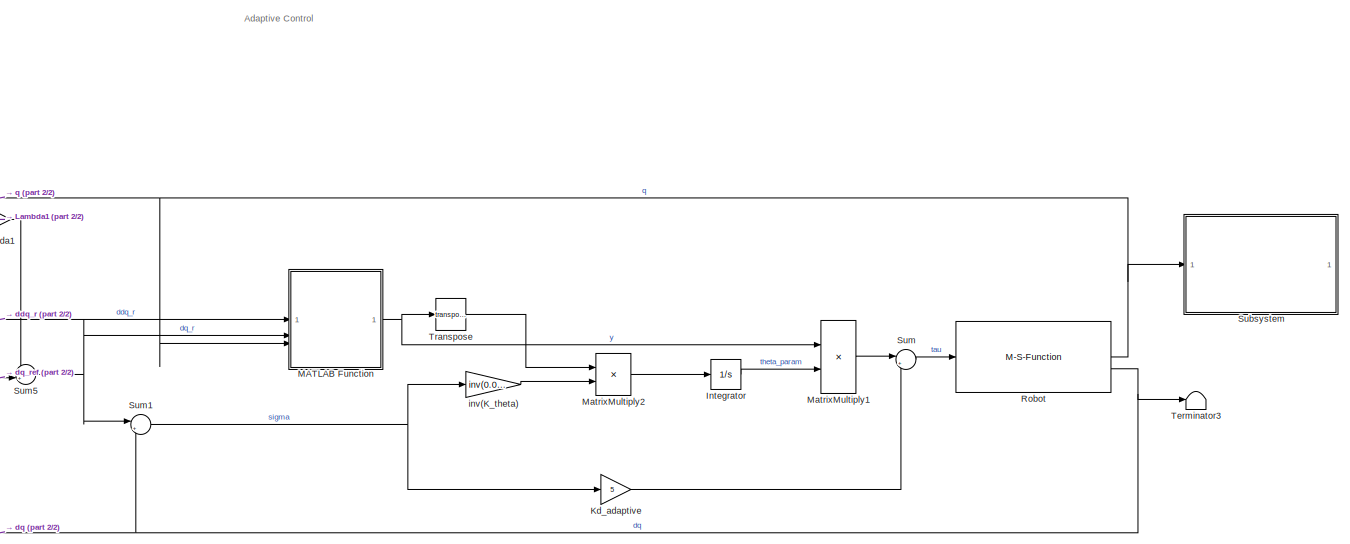
[diagram: root canvas - part 1/2, center side, full height]
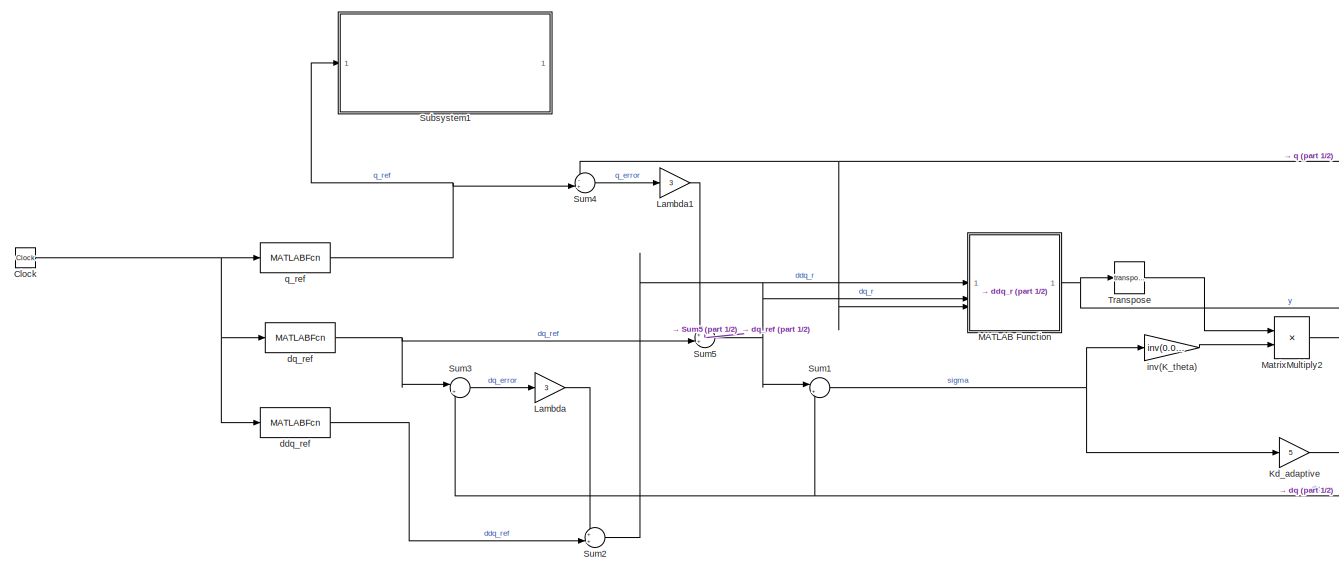
[diagram: root canvas - part 2/2, left side, full height]
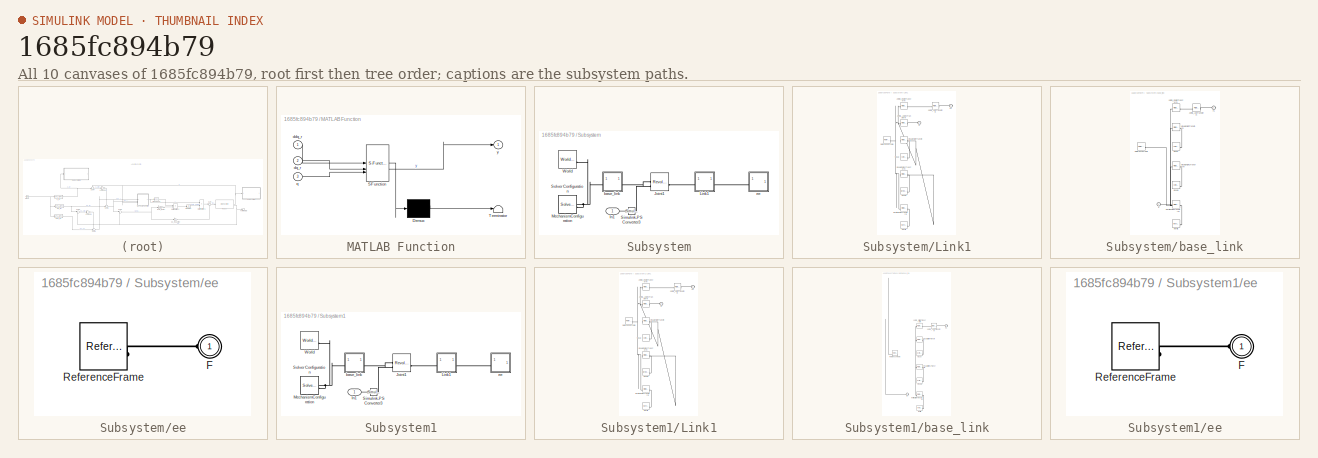
[diagram: thumbnail index - all 10 canvases of the model, root first then tree order]
MODEL slx_1685fc894b79
KIND model
CONFIG AbsTol = auto
CONFIG EnableMultiTasking = off
CONFIG FixedStep = auto
CONFIG MaxStep = auto
CONFIG MinStep = auto
CONFIG RelTol = 1e-3
CONFIG SampleTimeConstraint = Unconstrained
CONFIG SolverName = VariableStepAuto
CONFIG StartTime = 0.0
CONFIG StopTime = 20
BLOCK [Clock] Clock
BLOCK [Integrator] Integrator
  InitialCondition = [0; 0; 0]
BLOCK [Gain] Kd_adaptive
  Gain = 5
BLOCK [Gain] Lambda
  Gain = 3
BLOCK [Gain] Lambda1
  Gain = 3
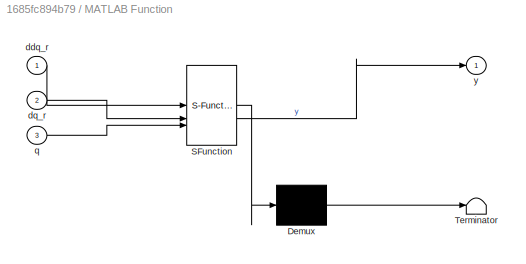
BLOCK [SubSystem] MATLAB Function
  ErrorFcn = Stateflow.Translate.translate
  PermitHierarchicalResolution = ExplicitOnly
  SFBlockType = MATLAB Function
  TreatAsAtomicUnit = on
BLOCK [Demux] MATLAB Function/ Demux 
  Outputs = 1
BLOCK [S-Function] MATLAB Function/ SFunction 
  EnableBusSupport = on
  FunctionName = sf_sfun
  PortCounts = [3 2]
  SFcnIsStateOwnerBlock = off
  SFunctionDeploymentMode = off
  Tag = Stateflow S-Function 2
BLOCK [Terminator] MATLAB Function/ Terminator 
BLOCK [Inport] MATLAB Function/ddq_r
BLOCK [Inport] MATLAB Function/dq_r
  Port = 2
BLOCK [Inport] MATLAB Function/q
  Port = 3
BLOCK [Outport] MATLAB Function/y
BLOCK [Product] MatrixMultiply1
  Multiplication = Matrix(*)
BLOCK [Product] MatrixMultiply2
  Multiplication = Matrix(*)
BLOCK [M-S-Function] Robot
  FunctionName = adaptive_control_S_FUNCTION
  NameLocation = top
  Parameters = 1,1
BLOCK [SubSystem] Subsystem
  Commented = on
BLOCK [Inport] Subsystem/In1
BLOCK [Reference] Subsystem/Joint1  REF=sm_lib/Joints/Revolute Joint
  SourceBlock = sm_lib/Joints/Revolute Joint
  SourceType = Revolute Joint
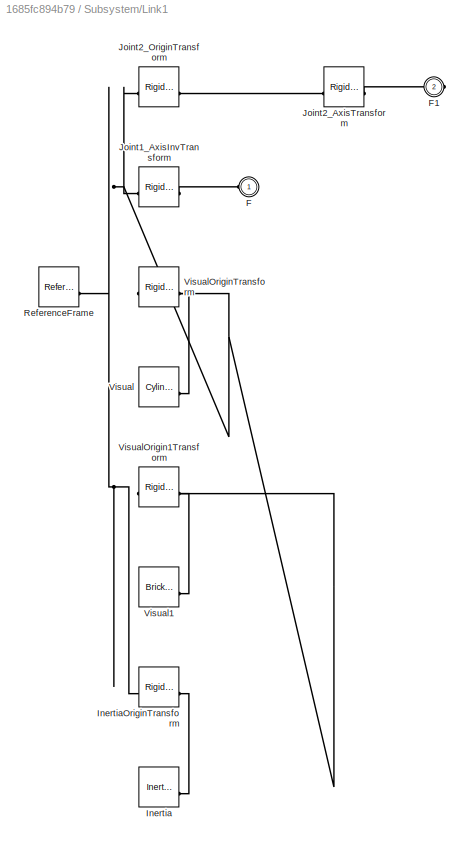
BLOCK [SubSystem] Subsystem/Link1
BLOCK [PMIOPort] Subsystem/Link1/F
  Side = Left
BLOCK [PMIOPort] Subsystem/Link1/F1
  Port = 2
  Side = Right
BLOCK [Reference] Subsystem/Link1/Inertia  REF=sm_lib/Body Elements/Inertia
  SourceBlock = sm_lib/Body Elements/Inertia
  SourceType = Inertia
BLOCK [Reference] Subsystem/Link1/InertiaOriginTransform  REF=sm_lib/Frames and
Transforms/Rigid
Transform
  SourceBlock = sm_lib/Frames and\nTransforms/Rigid\nTransform
  SourceType = Rigid\nTransform
BLOCK [Reference] Subsystem/Link1/Joint1_AxisInvTransform  REF=sm_lib/Frames and
Transforms/Rigid
Transform
  SourceBlock = sm_lib/Frames and\nTransforms/Rigid\nTransform
  SourceType = Rigid\nTransform
BLOCK [Reference] Subsystem/Link1/Joint2_AxisTransform  REF=sm_lib/Frames and
Transforms/Rigid
Transform
  SourceBlock = sm_lib/Frames and\nTransforms/Rigid\nTransform
  SourceType = Rigid\nTransform
BLOCK [Reference] Subsystem/Link1/Joint2_OriginTransform  REF=sm_lib/Frames and
Transforms/Rigid
Transform
  SourceBlock = sm_lib/Frames and\nTransforms/Rigid\nTransform
  SourceType = Rigid\nTransform
BLOCK [Reference] Subsystem/Link1/ReferenceFrame  REF=sm_lib/Frames and
Transforms/Reference
Frame
  SourceBlock = sm_lib/Frames and\nTransforms/Reference\nFrame
  SourceType = Reference\nFrame
BLOCK [Reference] Subsystem/Link1/Visual  REF=sm_lib/Body Elements/Cylindrical Solid
  SourceBlock = sm_lib/Body Elements/Cylindrical Solid
  SourceType = Cylindrical Solid
BLOCK [Reference] Subsystem/Link1/Visual1  REF=sm_lib/Body Elements/Brick Solid
  SourceBlock = sm_lib/Body Elements/Brick Solid
  SourceType = Brick Solid
BLOCK [Reference] Subsystem/Link1/VisualOrigin1Transform  REF=sm_lib/Frames and
Transforms/Rigid
Transform
  SourceBlock = sm_lib/Frames and\nTransforms/Rigid\nTransform
  SourceType = Rigid\nTransform
BLOCK [Reference] Subsystem/Link1/VisualOriginTransform  REF=sm_lib/Frames and
Transforms/Rigid
Transform
  SourceBlock = sm_lib/Frames and\nTransforms/Rigid\nTransform
  SourceType = Rigid\nTransform
BLOCK [Reference] Subsystem/MechanismConfiguration  REF=sm_lib/Utilities/Mechanism
Configuration
  SourceBlock = sm_lib/Utilities/Mechanism\nConfiguration
  SourceType = Mechanism\nConfiguration
BLOCK [Reference] Subsystem/Simulink-PS Converter3  REF=nesl_utility/Simulink-PS
Converter
  SourceBlock = nesl_utility/Simulink-PS\nConverter
  SourceType = Simulink-PS\nConverter
BLOCK [Reference] Subsystem/Solver Configuration  REF=nesl_utility/Solver
Configuration
  SourceBlock = nesl_utility/Solver\nConfiguration
  SourceType = Solver\nConfiguration
BLOCK [Reference] Subsystem/World  REF=sm_lib/Frames and
Transforms/World Frame
  SourceBlock = sm_lib/Frames and\nTransforms/World Frame
  SourceType = World Frame
BLOCK [SubSystem] Subsystem/base_link
BLOCK [PMIOPort] Subsystem/base_link/F
  Side = Left
BLOCK [PMIOPort] Subsystem/base_link/F1
  Port = 2
  Side = Right
BLOCK [Reference] Subsystem/base_link/Inertia  REF=sm_lib/Body Elements/Inertia
  SourceBlock = sm_lib/Body Elements/Inertia
  SourceType = Inertia
BLOCK [Reference] Subsystem/base_link/InertiaOriginTransform  REF=sm_lib/Frames and
Transforms/Rigid
Transform
  SourceBlock = sm_lib/Frames and\nTransforms/Rigid\nTransform
  SourceType = Rigid\nTransform
BLOCK [Reference] Subsystem/base_link/Joint1_AxisTransform  REF=sm_lib/Frames and
Transforms/Rigid
Transform
  SourceBlock = sm_lib/Frames and\nTransforms/Rigid\nTransform
  SourceType = Rigid\nTransform
BLOCK [Reference] Subsystem/base_link/Joint1_OriginTransform  REF=sm_lib/Frames and
Transforms/Rigid
Transform
  SourceBlock = sm_lib/Frames and\nTransforms/Rigid\nTransform
  SourceType = Rigid\nTransform
BLOCK [Reference] Subsystem/base_link/ReferenceFrame  REF=sm_lib/Frames and
Transforms/Reference
Frame
  SourceBlock = sm_lib/Frames and\nTransforms/Reference\nFrame
  SourceType = Reference\nFrame
BLOCK [Reference] Subsystem/base_link/Visual  REF=sm_lib/Body Elements/Cylindrical Solid
  SourceBlock = sm_lib/Body Elements/Cylindrical Solid
  SourceType = Cylindrical Solid
BLOCK [Reference] Subsystem/base_link/Visual1  REF=sm_lib/Body Elements/Cylindrical Solid
  SourceBlock = sm_lib/Body Elements/Cylindrical Solid
  SourceType = Cylindrical Solid
BLOCK [Reference] Subsystem/base_link/VisualOrigin1Transform  REF=sm_lib/Frames and
Transforms/Rigid
Transform
  SourceBlock = sm_lib/Frames and\nTransforms/Rigid\nTransform
  SourceType = Rigid\nTransform
BLOCK [Reference] Subsystem/base_link/VisualOriginTransform  REF=sm_lib/Frames and
Transforms/Rigid
Transform
  SourceBlock = sm_lib/Frames and\nTransforms/Rigid\nTransform
  SourceType = Rigid\nTransform
BLOCK [SubSystem] Subsystem/ee
BLOCK [PMIOPort] Subsystem/ee/F
  Side = Left
BLOCK [Reference] Subsystem/ee/ReferenceFrame  REF=sm_lib/Frames and
Transforms/Reference
Frame
  SourceBlock = sm_lib/Frames and\nTransforms/Reference\nFrame
  SourceType = Reference\nFrame
BLOCK [SubSystem] Subsystem1
  Commented = on
BLOCK [Inport] Subsystem1/In1
BLOCK [Reference] Subsystem1/Joint1  REF=sm_lib/Joints/Revolute Joint
  SourceBlock = sm_lib/Joints/Revolute Joint
  SourceType = Revolute Joint
BLOCK [SubSystem] Subsystem1/Link1
BLOCK [PMIOPort] Subsystem1/Link1/F
  Side = Left
BLOCK [PMIOPort] Subsystem1/Link1/F1
  Port = 2
  Side = Right
BLOCK [Reference] Subsystem1/Link1/Inertia  REF=sm_lib/Body Elements/Inertia
  SourceBlock = sm_lib/Body Elements/Inertia
  SourceType = Inertia
BLOCK [Reference] Subsystem1/Link1/InertiaOriginTransform  REF=sm_lib/Frames and
Transforms/Rigid
Transform
  SourceBlock = sm_lib/Frames and\nTransforms/Rigid\nTransform
  SourceType = Rigid\nTransform
BLOCK [Reference] Subsystem1/Link1/Joint1_AxisInvTransform  REF=sm_lib/Frames and
Transforms/Rigid
Transform
  SourceBlock = sm_lib/Frames and\nTransforms/Rigid\nTransform
  SourceType = Rigid\nTransform
BLOCK [Reference] Subsystem1/Link1/Joint2_AxisTransform  REF=sm_lib/Frames and
Transforms/Rigid
Transform
  SourceBlock = sm_lib/Frames and\nTransforms/Rigid\nTransform
  SourceType = Rigid\nTransform
BLOCK [Reference] Subsystem1/Link1/Joint2_OriginTransform  REF=sm_lib/Frames and
Transforms/Rigid
Transform
  SourceBlock = sm_lib/Frames and\nTransforms/Rigid\nTransform
  SourceType = Rigid\nTransform
BLOCK [Reference] Subsystem1/Link1/ReferenceFrame  REF=sm_lib/Frames and
Transforms/Reference
Frame
  SourceBlock = sm_lib/Frames and\nTransforms/Reference\nFrame
  SourceType = Reference\nFrame
BLOCK [Reference] Subsystem1/Link1/Visual  REF=sm_lib/Body Elements/Cylindrical Solid
  SourceBlock = sm_lib/Body Elements/Cylindrical Solid
  SourceType = Cylindrical Solid
BLOCK [Reference] Subsystem1/Link1/Visual1  REF=sm_lib/Body Elements/Brick Solid
  SourceBlock = sm_lib/Body Elements/Brick Solid
  SourceType = Brick Solid
BLOCK [Reference] Subsystem1/Link1/VisualOrigin1Transform  REF=sm_lib/Frames and
Transforms/Rigid
Transform
  SourceBlock = sm_lib/Frames and\nTransforms/Rigid\nTransform
  SourceType = Rigid\nTransform
BLOCK [Reference] Subsystem1/Link1/VisualOriginTransform  REF=sm_lib/Frames and
Transforms/Rigid
Transform
  SourceBlock = sm_lib/Frames and\nTransforms/Rigid\nTransform
  SourceType = Rigid\nTransform
BLOCK [Reference] Subsystem1/MechanismConfiguration  REF=sm_lib/Utilities/Mechanism
Configuration
  SourceBlock = sm_lib/Utilities/Mechanism\nConfiguration
  SourceType = Mechanism\nConfiguration
BLOCK [Reference] Subsystem1/Simulink-PS Converter3  REF=nesl_utility/Simulink-PS
Converter
  SourceBlock = nesl_utility/Simulink-PS\nConverter
  SourceType = Simulink-PS\nConverter
BLOCK [Reference] Subsystem1/Solver Configuration  REF=nesl_utility/Solver
Configuration
  SourceBlock = nesl_utility/Solver\nConfiguration
  SourceType = Solver\nConfiguration
BLOCK [Reference] Subsystem1/World  REF=sm_lib/Frames and
Transforms/World Frame
  SourceBlock = sm_lib/Frames and\nTransforms/World Frame
  SourceType = World Frame
BLOCK [SubSystem] Subsystem1/base_link
BLOCK [PMIOPort] Subsystem1/base_link/F
  Side = Left
BLOCK [PMIOPort] Subsystem1/base_link/F1
  Port = 2
  Side = Right
BLOCK [Reference] Subsystem1/base_link/Inertia  REF=sm_lib/Body Elements/Inertia
  SourceBlock = sm_lib/Body Elements/Inertia
  SourceType = Inertia
BLOCK [Reference] Subsystem1/base_link/InertiaOriginTransform  REF=sm_lib/Frames and
Transforms/Rigid
Transform
  SourceBlock = sm_lib/Frames and\nTransforms/Rigid\nTransform
  SourceType = Rigid\nTransform
BLOCK [Reference] Subsystem1/base_link/Joint1_AxisTransform  REF=sm_lib/Frames and
Transforms/Rigid
Transform
  SourceBlock = sm_lib/Frames and\nTransforms/Rigid\nTransform
  SourceType = Rigid\nTransform
BLOCK [Reference] Subsystem1/base_link/Joint1_OriginTransform  REF=sm_lib/Frames and
Transforms/Rigid
Transform
  SourceBlock = sm_lib/Frames and\nTransforms/Rigid\nTransform
  SourceType = Rigid\nTransform
BLOCK [Reference] Subsystem1/base_link/ReferenceFrame  REF=sm_lib/Frames and
Transforms/Reference
Frame
  SourceBlock = sm_lib/Frames and\nTransforms/Reference\nFrame
  SourceType = Reference\nFrame
BLOCK [Reference] Subsystem1/base_link/Visual  REF=sm_lib/Body Elements/Cylindrical Solid
  SourceBlock = sm_lib/Body Elements/Cylindrical Solid
  SourceType = Cylindrical Solid
BLOCK [Reference] Subsystem1/base_link/Visual1  REF=sm_lib/Body Elements/Cylindrical Solid
  SourceBlock = sm_lib/Body Elements/Cylindrical Solid
  SourceType = Cylindrical Solid
BLOCK [Reference] Subsystem1/base_link/VisualOrigin1Transform  REF=sm_lib/Frames and
Transforms/Rigid
Transform
  SourceBlock = sm_lib/Frames and\nTransforms/Rigid\nTransform
  SourceType = Rigid\nTransform
BLOCK [Reference] Subsystem1/base_link/VisualOriginTransform  REF=sm_lib/Frames and
Transforms/Rigid
Transform
  SourceBlock = sm_lib/Frames and\nTransforms/Rigid\nTransform
  SourceType = Rigid\nTransform
BLOCK [SubSystem] Subsystem1/ee
BLOCK [PMIOPort] Subsystem1/ee/F
  Side = Left
BLOCK [Reference] Subsystem1/ee/ReferenceFrame  REF=sm_lib/Frames and
Transforms/Reference
Frame
  SourceBlock = sm_lib/Frames and\nTransforms/Reference\nFrame
  SourceType = Reference\nFrame
BLOCK [Sum] Sum
  Inputs = |++
BLOCK [Sum] Sum1
  Inputs = |+-
BLOCK [Sum] Sum2
  Inputs = ++|
BLOCK [Sum] Sum3
  Inputs = |+-
BLOCK [Sum] Sum4
  Inputs = -+|
BLOCK [Sum] Sum5
  Inputs = ++|
BLOCK [Terminator] Terminator3
BLOCK [Math] Transpose
  Operator = transpose
BLOCK [MATLABFcn] ddq_ref
  MATLABFcn = robotStructure.func.ddq_ref(u)
BLOCK [MATLABFcn] dq_ref
  MATLABFcn = robotStructure.func.dq_ref(u)
BLOCK [Gain] inv(K_theta)
  Gain = inv(0.001)
  Multiplication = Matrix(K*u)
BLOCK [MATLABFcn] q_ref
  MATLABFcn = robotStructure.func.q_ref(u)
ANNOTATION (root): Adaptive Control
NET Clock:1 -> ddq_ref:1, dq_ref:1, q_ref:1
LINE Integrator:1 -> MatrixMultiply1:2
LINE Kd_adaptive:1 -> Sum:2
LINE Lambda1:1 -> Sum5:1
LINE Lambda:1 -> Sum2:1
NET MATLAB Function:1 -> MatrixMultiply1:1, Transpose:1
LINE MatrixMultiply1:1 -> Sum:1
LINE MatrixMultiply2:1 -> Integrator:1
NET Robot:1 -> MATLAB Function:3, Subsystem:1, Sum4:1
NET Robot:2 -> Sum1:2, Sum3:2, Terminator3:1
LINE Subsystem/In1:1 -> Subsystem/Simulink-PS Converter3:1
LINE Subsystem1/In1:1 -> Subsystem1/Simulink-PS Converter3:1
NET Sum1:1 -> Kd_adaptive:1, inv(K_theta):1
LINE Sum2:1 -> MATLAB Function:1
LINE Sum3:1 -> Lambda:1
LINE Sum4:1 -> Lambda1:1
NET Sum5:1 -> MATLAB Function:2, Sum1:1
LINE Sum:1 -> Robot:1
LINE Transpose:1 -> MatrixMultiply2:1
LINE ddq_ref:1 -> Sum2:2
NET dq_ref:1 -> Sum3:1, Sum5:2
LINE inv(K_theta):1 -> MatrixMultiply2:2
NET q_ref:1 -> Subsystem1:1, Sum4:2
PLINE Subsystem/Joint1:LConn1 -- Subsystem/base_link:RConn1
PLINE Subsystem/Joint1:LConn2 -- Subsystem/Simulink-PS Converter3:RConn1
PLINE Subsystem/Joint1:RConn1 -- Subsystem/Link1:LConn1
PLINE Subsystem/Link1/F1:RConn1 -- Subsystem/Link1/Joint2_AxisTransform:RConn1
PLINE Subsystem/Link1/F:RConn1 -- Subsystem/Link1/Joint1_AxisInvTransform:RConn1
PLINE Subsystem/Link1/Inertia:RConn1 -- Subsystem/Link1/InertiaOriginTransform:RConn1
PNET net1: Subsystem/Link1/InertiaOriginTransform:LConn1 -- Subsystem/Link1/Joint1_AxisInvTransform:LConn1 -- Subsystem/Link1/Joint2_OriginTransform:LConn1 -- Subsystem/Link1/ReferenceFrame:RConn1 -- Subsystem/Link1/VisualOrigin1Transform:LConn1 -- Subsystem/Link1/VisualOriginTransform:LConn1
PLINE Subsystem/Link1/Joint2_AxisTransform:LConn1 -- Subsystem/Link1/Joint2_OriginTransform:RConn1
PLINE Subsystem/Link1/Visual1:RConn1 -- Subsystem/Link1/VisualOrigin1Transform:RConn1
PLINE Subsystem/Link1/Visual:RConn1 -- Subsystem/Link1/VisualOriginTransform:RConn1
PLINE Subsystem/Link1:RConn1 -- Subsystem/ee:LConn1
PNET net2: Subsystem/MechanismConfiguration:RConn1 -- Subsystem/Solver Configuration:RConn1 -- Subsystem/World:RConn1 -- Subsystem/base_link:LConn1
PLINE Subsystem/base_link/F1:RConn1 -- Subsystem/base_link/Joint1_AxisTransform:RConn1
PNET net3: Subsystem/base_link/F:RConn1 -- Subsystem/base_link/InertiaOriginTransform:LConn1 -- Subsystem/base_link/Joint1_OriginTransform:LConn1 -- Subsystem/base_link/ReferenceFrame:RConn1 -- Subsystem/base_link/VisualOrigin1Transform:LConn1 -- Subsystem/base_link/VisualOriginTransform:LConn1
PLINE Subsystem/base_link/Inertia:RConn1 -- Subsystem/base_link/InertiaOriginTransform:RConn1
PLINE Subsystem/base_link/Joint1_AxisTransform:LConn1 -- Subsystem/base_link/Joint1_OriginTransform:RConn1
PLINE Subsystem/base_link/Visual1:RConn1 -- Subsystem/base_link/VisualOrigin1Transform:RConn1
PLINE Subsystem/base_link/Visual:RConn1 -- Subsystem/base_link/VisualOriginTransform:RConn1
PLINE Subsystem/ee/F:RConn1 -- Subsystem/ee/ReferenceFrame:RConn1
PLINE Subsystem1/Joint1:LConn1 -- Subsystem1/base_link:RConn1
PLINE Subsystem1/Joint1:LConn2 -- Subsystem1/Simulink-PS Converter3:RConn1
PLINE Subsystem1/Joint1:RConn1 -- Subsystem1/Link1:LConn1
PLINE Subsystem1/Link1/F1:RConn1 -- Subsystem1/Link1/Joint2_AxisTransform:RConn1
PLINE Subsystem1/Link1/F:RConn1 -- Subsystem1/Link1/Joint1_AxisInvTransform:RConn1
PLINE Subsystem1/Link1/Inertia:RConn1 -- Subsystem1/Link1/InertiaOriginTransform:RConn1
PNET net4: Subsystem1/Link1/InertiaOriginTransform:LConn1 -- Subsystem1/Link1/Joint1_AxisInvTransform:LConn1 -- Subsystem1/Link1/Joint2_OriginTransform:LConn1 -- Subsystem1/Link1/ReferenceFrame:RConn1 -- Subsystem1/Link1/VisualOrigin1Transform:LConn1 -- Subsystem1/Link1/VisualOriginTransform:LConn1
PLINE Subsystem1/Link1/Joint2_AxisTransform:LConn1 -- Subsystem1/Link1/Joint2_OriginTransform:RConn1
PLINE Subsystem1/Link1/Visual1:RConn1 -- Subsystem1/Link1/VisualOrigin1Transform:RConn1
PLINE Subsystem1/Link1/Visual:RConn1 -- Subsystem1/Link1/VisualOriginTransform:RConn1
PLINE Subsystem1/Link1:RConn1 -- Subsystem1/ee:LConn1
PNET net5: Subsystem1/MechanismConfiguration:RConn1 -- Subsystem1/Solver Configuration:RConn1 -- Subsystem1/World:RConn1 -- Subsystem1/base_link:LConn1
PLINE Subsystem1/base_link/F1:RConn1 -- Subsystem1/base_link/Joint1_AxisTransform:RConn1
PNET net6: Subsystem1/base_link/F:RConn1 -- Subsystem1/base_link/InertiaOriginTransform:LConn1 -- Subsystem1/base_link/Joint1_OriginTransform:LConn1 -- Subsystem1/base_link/ReferenceFrame:RConn1 -- Subsystem1/base_link/VisualOrigin1Transform:LConn1 -- Subsystem1/base_link/VisualOriginTransform:LConn1
PLINE Subsystem1/base_link/Inertia:RConn1 -- Subsystem1/base_link/InertiaOriginTransform:RConn1
PLINE Subsystem1/base_link/Joint1_AxisTransform:LConn1 -- Subsystem1/base_link/Joint1_OriginTransform:RConn1
PLINE Subsystem1/base_link/Visual1:RConn1 -- Subsystem1/base_link/VisualOrigin1Transform:RConn1
PLINE Subsystem1/base_link/Visual:RConn1 -- Subsystem1/base_link/VisualOriginTransform:RConn1
PLINE Subsystem1/ee/F:RConn1 -- Subsystem1/ee/ReferenceFrame:RConn1
note: NET lines group one-source signal fan-out (src -> all destinations, sorted); 1:1 wires keep LINE; PNET lines group multi-terminal physical nets as a canonical sorted terminal list (undirected conserving connections); 2-terminal nets keep the pairwise PLINE form
CHART MATLAB Function states=1 transitions=1
  STATE_LABEL 'eML_blk_kernel()'
  STATE_LABEL 'SCRIPT:\nfunction y = fcn(ddq_r, dq_r, q)  \n    % 1. Inertia term (related to acceleration)\n    % 2. Viscous Friction term (related to velocity)\n    % 3. Gravity term (related to position)\n    \n    y = [ddq_r, dq_r, sin(q)]; \n\n\nend'
CHART  states=0 transitions=0
